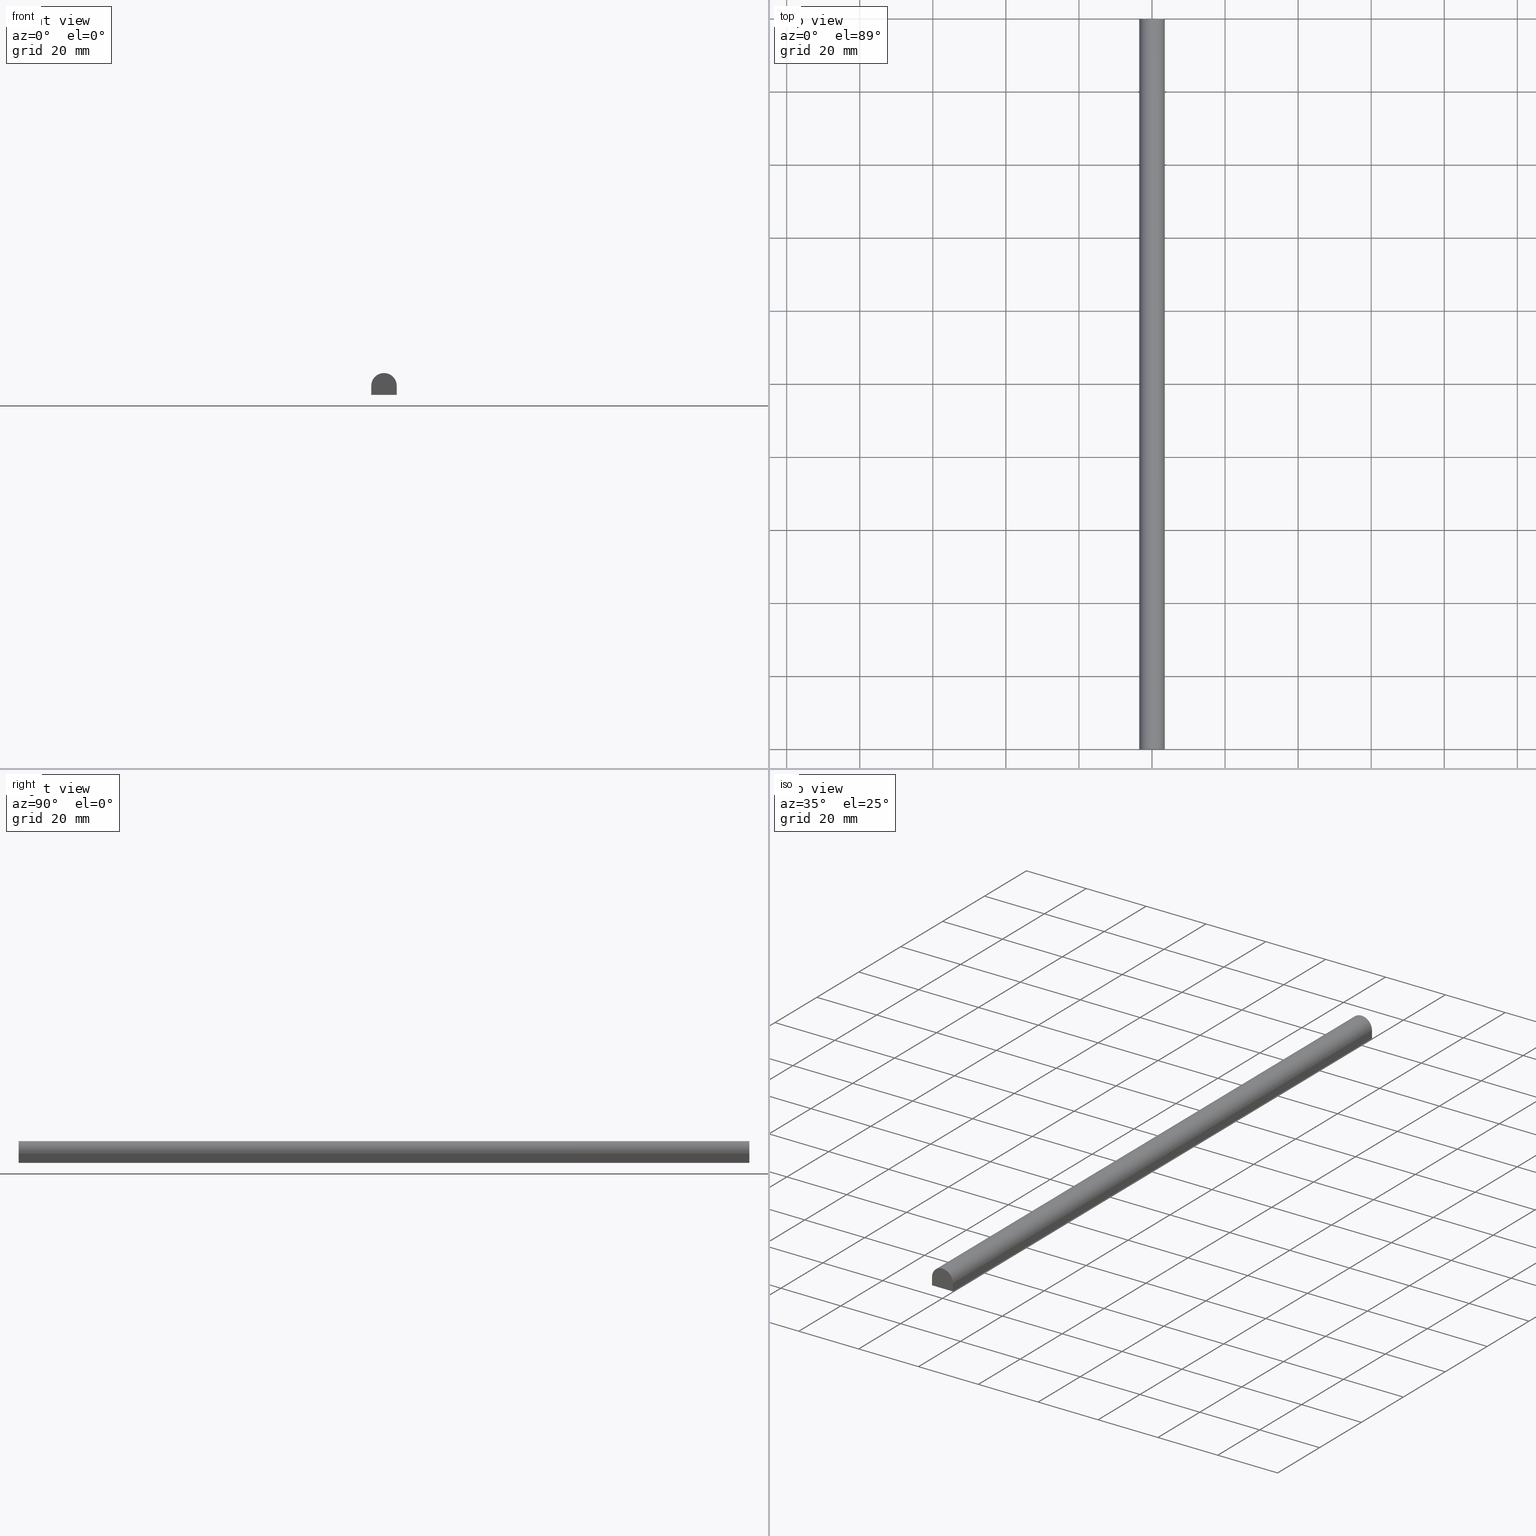
[diagram: canonical four-view strip — front | top / right | iso, engineering-drawing reading convention]
A machine part, canonical four-view strip (front | top / right | iso — engineering-drawing reading convention). The complete STEP part file that produces these views, byte-faithful:
ISO-10303-21;
HEADER;
FILE_DESCRIPTION (( 'STEP AP214' ),
    '1' );
FILE_NAME ('TM_341W_1.STEP',
    '2016-05-10T04:08:46',
    ( '' ),
    ( '' ),
    'SwSTEP 2.0',
    'SolidWorks 2015',
    '' );
FILE_SCHEMA (( 'AUTOMOTIVE_DESIGN' ));
ENDSEC;

DATA;
#1 = DIRECTION ( 'NONE',  ( -0.0000000000000000000, -0.0000000000000000000, 1.000000000000000000 ) ) ;
#2 = FACE_OUTER_BOUND ( 'NONE', #124, .T. ) ;
#3 = CARTESIAN_POINT ( 'NONE',  ( 0.0000000000000000000, 200.0000000000000000, 0.0000000000000000000 ) ) ;
#4 = CARTESIAN_POINT ( 'NONE',  ( -3.500000000000000000, 1000.000000000000000, -3.000000000000000000 ) ) ;
#5 = CARTESIAN_POINT ( 'NONE',  ( 3.500000000000000000, 1000.000000000000000, -3.000000000000000000 ) ) ;
#6 = CARTESIAN_POINT ( 'NONE',  ( 0.0000000000000000000, 200.0000000000000000, -3.000000000000000000 ) ) ;
#7 = SURFACE_STYLE_USAGE ( .BOTH. , #70 ) ;
#8 = PLANE ( 'NONE',  #75 ) ;
#9 = APPLICATION_CONTEXT ( 'automotive_design' ) ;
#10 = VERTEX_POINT ( 'NONE', #132 ) ;
#11 = STYLED_ITEM ( 'NONE', ( #151 ), #180 ) ;
#12 = DIRECTION ( 'NONE',  ( 1.000000000000000000, 0.0000000000000000000, 0.0000000000000000000 ) ) ;
#13 = PRODUCT_RELATED_PRODUCT_CATEGORY ( 'part', '', ( #53 ) ) ;
#14 = ORIENTED_EDGE ( 'NONE', *, *, #222, .F. ) ;
#15 = FACE_OUTER_BOUND ( 'NONE', #155, .T. ) ;
#16 = EDGE_CURVE ( 'NONE', #73, #200, #29, .T. ) ;
#17 = DIRECTION ( 'NONE',  ( -1.000000000000000000, 0.0000000000000000000, 0.0000000000000000000 ) ) ;
#18 = ORIENTED_EDGE ( 'NONE', *, *, #174, .T. ) ;
#19 = UNCERTAINTY_MEASURE_WITH_UNIT (LENGTH_MEASURE( 1.000000000000000100E-005 ), #230, 'distance_accuracy_value', 'NONE');
#20 = PRESENTATION_LAYER_ASSIGNMENT (  '', '', ( #11 ) ) ;
#21 = DIRECTION ( 'NONE',  ( 0.0000000000000000000, 0.0000000000000000000, -1.000000000000000000 ) ) ;
#22 = DIRECTION ( 'NONE',  ( 0.0000000000000000000, -1.000000000000000000, 0.0000000000000000000 ) ) ;
#23 = VECTOR ( 'NONE', #171, 1000.000000000000000 ) ;
#24 = ORIENTED_EDGE ( 'NONE', *, *, #120, .F. ) ;
#25 = VERTEX_POINT ( 'NONE', #240 ) ;
#26 = DIRECTION ( 'NONE',  ( 0.0000000000000000000, -1.000000000000000000, 0.0000000000000000000 ) ) ;
#27 = APPLICATION_CONTEXT ( 'automotive_design' ) ;
#28 = PRODUCT_DEFINITION_SHAPE ( 'NONE', 'NONE',  #241 ) ;
#29 = LINE ( 'NONE', #201, #85 ) ;
#30 = ORIENTED_EDGE ( 'NONE', *, *, #214, .F. ) ;
#31 = VECTOR ( 'NONE', #46, 1000.000000000000000 ) ;
#32 = AXIS2_PLACEMENT_3D ( 'NONE', #62, #161, #128 ) ;
#33 = MECHANICAL_DESIGN_GEOMETRIC_PRESENTATION_REPRESENTATION (  '', ( #11 ), #50 ) ;
#34 = DIRECTION ( 'NONE',  ( -0.0000000000000000000, -0.0000000000000000000, -1.000000000000000000 ) ) ;
#35 = SURFACE_STYLE_FILL_AREA ( #94 ) ;
#36 = SHAPE_DEFINITION_REPRESENTATION ( #207, #66 ) ;
#37 = VERTEX_POINT ( 'NONE', #40 ) ;
#38 = CARTESIAN_POINT ( 'NONE',  ( 3.500000000000000000, 1000.000000000000000, -3.000000000000000000 ) ) ;
#39 = ORIENTED_EDGE ( 'NONE', *, *, #16, .T. ) ;
#40 = CARTESIAN_POINT ( 'NONE',  ( -3.500000000000000000, 0.0000000000000000000, -3.000000000000000000 ) ) ;
#41 = EDGE_CURVE ( 'NONE', #206, #200, #101, .T. ) ;
#42 = SURFACE_SIDE_STYLE ('',( #35 ) ) ;
#43 = FACE_OUTER_BOUND ( 'NONE', #175, .T. ) ;
#44 = CARTESIAN_POINT ( 'NONE',  ( 0.0000000000000000000, 0.0000000000000000000, 0.0000000000000000000 ) ) ;
#45 = DIRECTION ( 'NONE',  ( 0.0000000000000000000, 0.0000000000000000000, 1.000000000000000000 ) ) ;
#46 = DIRECTION ( 'NONE',  ( 1.000000000000000000, -0.0000000000000000000, -0.0000000000000000000 ) ) ;
#47 =( REPRESENTATION_RELATIONSHIP ('NONE','NONE', #69, #66 ) REPRESENTATION_RELATIONSHIP_WITH_TRANSFORMATION ( #135 )SHAPE_REPRESENTATION_RELATIONSHIP( ) );
#48 = DIRECTION ( 'NONE',  ( 0.0000000000000000000, 0.0000000000000000000, 1.000000000000000000 ) ) ;
#49 = UNCERTAINTY_MEASURE_WITH_UNIT (LENGTH_MEASURE( 1.000000000000000100E-005 ), #188, 'distance_accuracy_value', 'NONE');
#50 =( GEOMETRIC_REPRESENTATION_CONTEXT ( 3 ) GLOBAL_UNCERTAINTY_ASSIGNED_CONTEXT ( ( #19 ) ) GLOBAL_UNIT_ASSIGNED_CONTEXT ( ( #230, #98, #83 ) ) REPRESENTATION_CONTEXT ( 'NONE', 'WORKASPACE' ) );
#51 = VECTOR ( 'NONE', #22, 1000.000000000000000 ) ;
#52 = VECTOR ( 'NONE', #146, 1000.000000000000000 ) ;
#53 = PRODUCT ( 'rubber foam', 'rubber foam', '', ( #194 ) ) ;
#54 = COLOUR_RGB ( '',0.7921568627450980000, 0.8196078431372548800, 0.9333333333333333500 ) ;
#55 = PLANE ( 'NONE',  #205 ) ;
#56 = AXIS2_PLACEMENT_3D ( 'NONE', #125, #122, #173 ) ;
#57 = CARTESIAN_POINT ( 'NONE',  ( -3.500000000000000000, 1000.000000000000000, -0.5000000000000000000 ) ) ;
#58 = LINE ( 'NONE', #166, #144 ) ;
#59 = CLOSED_SHELL ( 'NONE', ( #134, #216, #64, #72, #158, #136 ) ) ;
#60 = SURFACE_STYLE_FILL_AREA ( #100 ) ;
#61 =( NAMED_UNIT ( * ) SI_UNIT ( $, .STERADIAN. ) SOLID_ANGLE_UNIT ( ) );
#62 = CARTESIAN_POINT ( 'NONE',  ( 0.0000000000000000000, 1000.000000000000000, -0.5000000000000000000 ) ) ;
#63 = CARTESIAN_POINT ( 'NONE',  ( 3.500000000000000000, 200.0000000000000000, 0.0000000000000000000 ) ) ;
#64 = ADVANCED_FACE ( 'NONE', ( #15 ), #89, .T. ) ;
#65 = CARTESIAN_POINT ( 'NONE',  ( 0.0000000000000000000, 0.0000000000000000000, -3.000000000000000000 ) ) ;
#66 = SHAPE_REPRESENTATION ( 'rubber foam', ( #238 ), #225 ) ;
#67 = APPLICATION_CONTEXT ( 'automotive_design' ) ;
#68 = ORIENTED_EDGE ( 'NONE', *, *, #129, .T. ) ;
#69 = SHAPE_REPRESENTATION ( 'TM_341W_1', ( #162, #133 ), #152 ) ;
#70 = SURFACE_SIDE_STYLE ('',( #60 ) ) ;
#71 = EDGE_CURVE ( 'NONE', #25, #73, #186, .T. ) ;
#72 = ADVANCED_FACE ( 'NONE', ( #164 ), #8, .T. ) ;
#73 = VERTEX_POINT ( 'NONE', #204 ) ;
#74 = EDGE_LOOP ( 'NONE', ( #30, #210, #18, #111 ) ) ;
#75 = AXIS2_PLACEMENT_3D ( 'NONE', #57, #17, #45 ) ;
#76 = CARTESIAN_POINT ( 'NONE',  ( -3.500000000000000000, 200.0000000000000000, -0.5000000000000000000 ) ) ;
#77 = DIRECTION ( 'NONE',  ( 0.0000000000000000000, 0.0000000000000000000, 1.000000000000000000 ) ) ;
#78 = ORIENTED_EDGE ( 'NONE', *, *, #196, .T. ) ;
#79 = ORIENTED_EDGE ( 'NONE', *, *, #71, .T. ) ;
#80 = DIRECTION ( 'NONE',  ( -0.0000000000000000000, 1.000000000000000000, 0.0000000000000000000 ) ) ;
#81 = EDGE_CURVE ( 'NONE', #200, #184, #115, .T. ) ;
#82 = VECTOR ( 'NONE', #170, 1000.000000000000000 ) ;
#83 =( NAMED_UNIT ( * ) SI_UNIT ( $, .STERADIAN. ) SOLID_ANGLE_UNIT ( ) );
#84 =( NAMED_UNIT ( * ) PLANE_ANGLE_UNIT ( ) SI_UNIT ( $, .RADIAN. ) );
#85 = VECTOR ( 'NONE', #26, 1000.000000000000000 ) ;
#86 = APPLICATION_PROTOCOL_DEFINITION ( 'draft international standard', 'automotive_design', 1998, #27 ) ;
#87 =( NAMED_UNIT ( * ) PLANE_ANGLE_UNIT ( ) SI_UNIT ( $, .RADIAN. ) );
#88 = LINE ( 'NONE', #5, #82 ) ;
#89 = CYLINDRICAL_SURFACE ( 'NONE', #32, 3.500000000000000000 ) ;
#90 = ORIENTED_EDGE ( 'NONE', *, *, #16, .F. ) ;
#91 = UNCERTAINTY_MEASURE_WITH_UNIT (LENGTH_MEASURE( 1.000000000000000100E-005 ), #229, 'distance_accuracy_value', 'NONE');
#92 = EDGE_CURVE ( 'NONE', #117, #184, #217, .T. ) ;
#93 = CARTESIAN_POINT ( 'NONE',  ( 3.500000000000000000, 0.0000000000000000000, -3.000000000000000000 ) ) ;
#94 = FILL_AREA_STYLE ('',( #220 ) ) ;
#95 = CARTESIAN_POINT ( 'NONE',  ( -3.500000000000000000, 0.0000000000000000000, -0.5000000000000000000 ) ) ;
#96 = CARTESIAN_POINT ( 'NONE',  ( 3.500000000000000000, 0.0000000000000000000, -0.5000000000000000000 ) ) ;
#97 =( NAMED_UNIT ( * ) PLANE_ANGLE_UNIT ( ) SI_UNIT ( $, .RADIAN. ) );
#98 =( NAMED_UNIT ( * ) PLANE_ANGLE_UNIT ( ) SI_UNIT ( $, .RADIAN. ) );
#99 = APPLICATION_CONTEXT ( 'automotive_design' ) ;
#100 = FILL_AREA_STYLE ('',( #113 ) ) ;
#101 = LINE ( 'NONE', #223, #127 ) ;
#102 = ORIENTED_EDGE ( 'NONE', *, *, #150, .F. ) ;
#103 = COLOUR_RGB ( '',0.7921568627450980000, 0.8196078431372548800, 0.9333333333333333500 ) ;
#104 = DIRECTION ( 'NONE',  ( 1.000000000000000000, 0.0000000000000000000, 0.0000000000000000000 ) ) ;
#105 = CARTESIAN_POINT ( 'NONE',  ( -3.500000000000000000, 1000.000000000000000, -0.5000000000000000000 ) ) ;
#106 = ORIENTED_EDGE ( 'NONE', *, *, #214, .T. ) ;
#107 = DIRECTION ( 'NONE',  ( -1.000000000000000000, 0.0000000000000000000, 0.0000000000000000000 ) ) ;
#108 = PRODUCT_DEFINITION_CONTEXT ( 'detailed design', #67, 'design' ) ;
#109 = SHAPE_DEFINITION_REPRESENTATION ( #198, #69 ) ;
#110 = ORIENTED_EDGE ( 'NONE', *, *, #222, .T. ) ;
#111 = ORIENTED_EDGE ( 'NONE', *, *, #150, .T. ) ;
#112 = APPLICATION_PROTOCOL_DEFINITION ( 'draft international standard', 'automotive_design', 1998, #9 ) ;
#113 = FILL_AREA_STYLE_COLOUR ( '', #54 ) ;
#114 = VECTOR ( 'NONE', #192, 1000.000000000000000 ) ;
#115 = CIRCLE ( 'NONE', #157, 3.500000000000000000 ) ;
#116 = ORIENTED_EDGE ( 'NONE', *, *, #41, .T. ) ;
#117 = VERTEX_POINT ( 'NONE', #76 ) ;
#118 = SHAPE_REPRESENTATION_RELATIONSHIP ( 'NONE' , 'NONE' ,  #66, #180 ) ;
#119 = AXIS2_PLACEMENT_3D ( 'NONE', #44, #80, #234 ) ;
#120 = EDGE_CURVE ( 'NONE', #25, #206, #88, .T. ) ;
#121 = AXIS2_PLACEMENT_3D ( 'NONE', #142, #165, #224 ) ;
#122 = DIRECTION ( 'NONE',  ( -0.0000000000000000000, -1.000000000000000000, -0.0000000000000000000 ) ) ;
#123 = DIRECTION ( 'NONE',  ( 1.000000000000000000, 0.0000000000000000000, 0.0000000000000000000 ) ) ;
#124 = EDGE_LOOP ( 'NONE', ( #148, #169, #131, #126 ) ) ;
#125 = CARTESIAN_POINT ( 'NONE',  ( 0.0000000000000000000, 200.0000000000000000, -0.5000000000000000000 ) ) ;
#126 = ORIENTED_EDGE ( 'NONE', *, *, #71, .F. ) ;
#127 = VECTOR ( 'NONE', #163, 1000.000000000000000 ) ;
#128 = DIRECTION ( 'NONE',  ( 0.0000000000000000000, 0.0000000000000000000, -1.000000000000000000 ) ) ;
#129 = EDGE_CURVE ( 'NONE', #73, #117, #172, .T. ) ;
#130 = EDGE_LOOP ( 'NONE', ( #14, #102, #78, #167 ) ) ;
#131 = ORIENTED_EDGE ( 'NONE', *, *, #129, .F. ) ;
#132 = CARTESIAN_POINT ( 'NONE',  ( -3.500000000000000000, 200.0000000000000000, -3.000000000000000000 ) ) ;
#133 = AXIS2_PLACEMENT_3D ( 'NONE', #139, #77, #236 ) ;
#134 = ADVANCED_FACE ( 'NONE', ( #181 ), #55, .T. ) ;
#135 = ITEM_DEFINED_TRANSFORMATION ( 'NONE', 'NONE', #133,  #238 ) ;
#136 = ADVANCED_FACE ( 'NONE', ( #43 ), #208, .F. ) ;
#137 = EDGE_LOOP ( 'NONE', ( #185, #24, #79, #39 ) ) ;
#138 = DIRECTION ( 'NONE',  ( -0.0000000000000000000, 1.000000000000000000, 0.0000000000000000000 ) ) ;
#139 = CARTESIAN_POINT ( 'NONE',  ( 0.0000000000000000000, 0.0000000000000000000, 0.0000000000000000000 ) ) ;
#140 = CARTESIAN_POINT ( 'NONE',  ( 0.0000000000000000000, 0.0000000000000000000, 0.0000000000000000000 ) ) ;
#141 = DIRECTION ( 'NONE',  ( 0.0000000000000000000, 0.0000000000000000000, -1.000000000000000000 ) ) ;
#142 = CARTESIAN_POINT ( 'NONE',  ( 0.0000000000000000000, 0.0000000000000000000, 0.0000000000000000000 ) ) ;
#143 = CONTEXT_DEPENDENT_SHAPE_REPRESENTATION ( #47, #28 ) ;
#144 = VECTOR ( 'NONE', #34, 1000.000000000000000 ) ;
#145 = PRODUCT_DEFINITION_CONTEXT ( 'detailed design', #99, 'design' ) ;
#146 = DIRECTION ( 'NONE',  ( -0.0000000000000000000, -0.0000000000000000000, -1.000000000000000000 ) ) ;
#147 = AXIS2_PLACEMENT_3D ( 'NONE', #3, #138, #104 ) ;
#148 = ORIENTED_EDGE ( 'NONE', *, *, #196, .F. ) ;
#149 = LINE ( 'NONE', #65, #31 ) ;
#150 = EDGE_CURVE ( 'NONE', #10, #37, #190, .T. ) ;
#151 = PRESENTATION_STYLE_ASSIGNMENT (( #7 ) ) ;
#152 =( GEOMETRIC_REPRESENTATION_CONTEXT ( 3 ) GLOBAL_UNCERTAINTY_ASSIGNED_CONTEXT ( ( #193 ) ) GLOBAL_UNIT_ASSIGNED_CONTEXT ( ( #213, #87, #195 ) ) REPRESENTATION_CONTEXT ( 'NONE', 'WORKASPACE' ) );
#153 = DIRECTION ( 'NONE',  ( 0.0000000000000000000, 0.0000000000000000000, 1.000000000000000000 ) ) ;
#154 = CARTESIAN_POINT ( 'NONE',  ( 0.0000000000000000000, 0.0000000000000000000, -0.5000000000000000000 ) ) ;
#155 = EDGE_LOOP ( 'NONE', ( #177, #90, #68, #233 ) ) ;
#156 = DIRECTION ( 'NONE',  ( 1.000000000000000000, 0.0000000000000000000, 0.0000000000000000000 ) ) ;
#157 = AXIS2_PLACEMENT_3D ( 'NONE', #154, #189, #227 ) ;
#158 = ADVANCED_FACE ( 'NONE', ( #2 ), #231, .T. ) ;
#159 = ORIENTED_EDGE ( 'NONE', *, *, #81, .T. ) ;
#160 = STYLED_ITEM ( 'NONE', ( #183 ), #226 ) ;
#161 = DIRECTION ( 'NONE',  ( 0.0000000000000000000, -1.000000000000000000, 0.0000000000000000000 ) ) ;
#162 = AXIS2_PLACEMENT_3D ( 'NONE', #140, #48, #156 ) ;
#163 = DIRECTION ( 'NONE',  ( -0.0000000000000000000, -0.0000000000000000000, 1.000000000000000000 ) ) ;
#164 = FACE_OUTER_BOUND ( 'NONE', #74, .T. ) ;
#165 = DIRECTION ( 'NONE',  ( 0.0000000000000000000, 0.0000000000000000000, 1.000000000000000000 ) ) ;
#166 = CARTESIAN_POINT ( 'NONE',  ( -3.500000000000000000, 200.0000000000000000, 0.0000000000000000000 ) ) ;
#167 = ORIENTED_EDGE ( 'NONE', *, *, #120, .T. ) ;
#168 = PLANE ( 'NONE',  #179 ) ;
#169 = ORIENTED_EDGE ( 'NONE', *, *, #174, .F. ) ;
#170 = DIRECTION ( 'NONE',  ( 0.0000000000000000000, -1.000000000000000000, 0.0000000000000000000 ) ) ;
#171 = DIRECTION ( 'NONE',  ( 0.0000000000000000000, -1.000000000000000000, 0.0000000000000000000 ) ) ;
#172 = CIRCLE ( 'NONE', #56, 3.500000000000000000 ) ;
#173 = DIRECTION ( 'NONE',  ( 0.0000000000000000000, 0.0000000000000000000, 1.000000000000000000 ) ) ;
#174 = EDGE_CURVE ( 'NONE', #117, #10, #58, .T. ) ;
#175 = EDGE_LOOP ( 'NONE', ( #110, #116, #159, #106 ) ) ;
#176 = CARTESIAN_POINT ( 'NONE',  ( -3.500000000000000000, 1000.000000000000000, -3.000000000000000000 ) ) ;
#177 = ORIENTED_EDGE ( 'NONE', *, *, #81, .F. ) ;
#178 = APPLICATION_PROTOCOL_DEFINITION ( 'draft international standard', 'automotive_design', 1998, #67 ) ;
#179 = AXIS2_PLACEMENT_3D ( 'NONE', #38, #123, #141 ) ;
#180 = ADVANCED_BREP_SHAPE_REPRESENTATION ( '', ( #226, #238 ), #225 ) ;
#181 = FACE_OUTER_BOUND ( 'NONE', #130, .T. ) ;
#182 = PRODUCT_DEFINITION ( 'UNKNOWN', '', #239, #108 ) ;
#183 = PRESENTATION_STYLE_ASSIGNMENT (( #187 ) ) ;
#184 = VERTEX_POINT ( 'NONE', #95 ) ;
#185 = ORIENTED_EDGE ( 'NONE', *, *, #41, .F. ) ;
#186 = LINE ( 'NONE', #63, #237 ) ;
#187 = SURFACE_STYLE_USAGE ( .BOTH. , #42 ) ;
#188 =( LENGTH_UNIT ( ) NAMED_UNIT ( * ) SI_UNIT ( .MILLI., .METRE. ) );
#189 = DIRECTION ( 'NONE',  ( -0.0000000000000000000, -1.000000000000000000, -0.0000000000000000000 ) ) ;
#190 = LINE ( 'NONE', #176, #51 ) ;
#191 = PRESENTATION_LAYER_ASSIGNMENT (  '', '', ( #160 ) ) ;
#192 = DIRECTION ( 'NONE',  ( 1.000000000000000000, -0.0000000000000000000, -0.0000000000000000000 ) ) ;
#193 = UNCERTAINTY_MEASURE_WITH_UNIT (LENGTH_MEASURE( 1.000000000000000100E-005 ), #213, 'distance_accuracy_value', 'NONE');
#194 = PRODUCT_CONTEXT ( 'NONE', #27, 'mechanical' ) ;
#195 =( NAMED_UNIT ( * ) SI_UNIT ( $, .STERADIAN. ) SOLID_ANGLE_UNIT ( ) );
#196 = EDGE_CURVE ( 'NONE', #10, #25, #221, .T. ) ;
#197 = LINE ( 'NONE', #219, #52 ) ;
#198 = PRODUCT_DEFINITION_SHAPE ( 'NONE', 'NONE',  #202 ) ;
#199 = MECHANICAL_DESIGN_GEOMETRIC_PRESENTATION_REPRESENTATION (  '', ( #160 ), #212 ) ;
#200 = VERTEX_POINT ( 'NONE', #96 ) ;
#201 = CARTESIAN_POINT ( 'NONE',  ( 3.500000000000000000, 1000.000000000000000, -0.5000000000000000000 ) ) ;
#202 = PRODUCT_DEFINITION ( 'UNKNOWN', '', #215, #145 ) ;
#203 = FACE_OUTER_BOUND ( 'NONE', #137, .T. ) ;
#204 = CARTESIAN_POINT ( 'NONE',  ( 3.500000000000000000, 200.0000000000000000, -0.5000000000000000000 ) ) ;
#205 = AXIS2_PLACEMENT_3D ( 'NONE', #4, #21, #107 ) ;
#206 = VERTEX_POINT ( 'NONE', #93 ) ;
#207 = PRODUCT_DEFINITION_SHAPE ( 'NONE', 'NONE',  #182 ) ;
#208 = PLANE ( 'NONE',  #119 ) ;
#209 = CARTESIAN_POINT ( 'NONE',  ( 0.0000000000000000000, 0.0000000000000000000, 0.0000000000000000000 ) ) ;
#210 = ORIENTED_EDGE ( 'NONE', *, *, #92, .F. ) ;
#211 = APPLICATION_PROTOCOL_DEFINITION ( 'draft international standard', 'automotive_design', 1998, #99 ) ;
#212 =( GEOMETRIC_REPRESENTATION_CONTEXT ( 3 ) GLOBAL_UNCERTAINTY_ASSIGNED_CONTEXT ( ( #49 ) ) GLOBAL_UNIT_ASSIGNED_CONTEXT ( ( #188, #97, #61 ) ) REPRESENTATION_CONTEXT ( 'NONE', 'WORKASPACE' ) );
#213 =( LENGTH_UNIT ( ) NAMED_UNIT ( * ) SI_UNIT ( .MILLI., .METRE. ) );
#214 = EDGE_CURVE ( 'NONE', #184, #37, #197, .T. ) ;
#215 = PRODUCT_DEFINITION_FORMATION_WITH_SPECIFIED_SOURCE ( 'ANY', '', #218, .NOT_KNOWN. ) ;
#216 = ADVANCED_FACE ( 'NONE', ( #203 ), #168, .T. ) ;
#217 = LINE ( 'NONE', #105, #23 ) ;
#218 = PRODUCT ( 'TM_341W_1', 'TM_341W_1', '', ( #235 ) ) ;
#219 = CARTESIAN_POINT ( 'NONE',  ( -3.500000000000000000, 0.0000000000000000000, 0.0000000000000000000 ) ) ;
#220 = FILL_AREA_STYLE_COLOUR ( '', #103 ) ;
#221 = LINE ( 'NONE', #6, #114 ) ;
#222 = EDGE_CURVE ( 'NONE', #37, #206, #149, .T. ) ;
#223 = CARTESIAN_POINT ( 'NONE',  ( 3.500000000000000000, 0.0000000000000000000, 0.0000000000000000000 ) ) ;
#224 = DIRECTION ( 'NONE',  ( 1.000000000000000000, 0.0000000000000000000, 0.0000000000000000000 ) ) ;
#225 =( GEOMETRIC_REPRESENTATION_CONTEXT ( 3 ) GLOBAL_UNCERTAINTY_ASSIGNED_CONTEXT ( ( #91 ) ) GLOBAL_UNIT_ASSIGNED_CONTEXT ( ( #229, #84, #232 ) ) REPRESENTATION_CONTEXT ( 'NONE', 'WORKASPACE' ) );
#226 = MANIFOLD_SOLID_BREP ( '���߰�1', #59 ) ;
#227 = DIRECTION ( 'NONE',  ( 0.0000000000000000000, 0.0000000000000000000, 1.000000000000000000 ) ) ;
#228 = PRODUCT_RELATED_PRODUCT_CATEGORY ( 'part', '', ( #218 ) ) ;
#229 =( LENGTH_UNIT ( ) NAMED_UNIT ( * ) SI_UNIT ( .MILLI., .METRE. ) );
#230 =( LENGTH_UNIT ( ) NAMED_UNIT ( * ) SI_UNIT ( .MILLI., .METRE. ) );
#231 = PLANE ( 'NONE',  #147 ) ;
#232 =( NAMED_UNIT ( * ) SI_UNIT ( $, .STERADIAN. ) SOLID_ANGLE_UNIT ( ) );
#233 = ORIENTED_EDGE ( 'NONE', *, *, #92, .T. ) ;
#234 = DIRECTION ( 'NONE',  ( 1.000000000000000000, 0.0000000000000000000, 0.0000000000000000000 ) ) ;
#235 = PRODUCT_CONTEXT ( 'NONE', #9, 'mechanical' ) ;
#236 = DIRECTION ( 'NONE',  ( 1.000000000000000000, 0.0000000000000000000, 0.0000000000000000000 ) ) ;
#237 = VECTOR ( 'NONE', #1, 1000.000000000000000 ) ;
#238 = AXIS2_PLACEMENT_3D ( 'NONE', #209, #153, #12 ) ;
#239 = PRODUCT_DEFINITION_FORMATION_WITH_SPECIFIED_SOURCE ( 'ANY', '', #53, .NOT_KNOWN. ) ;
#240 = CARTESIAN_POINT ( 'NONE',  ( 3.500000000000000000, 200.0000000000000000, -3.000000000000000000 ) ) ;
#241 = NEXT_ASSEMBLY_USAGE_OCCURRENCE ( 'NAUO1', ' ', ' ', #202, #182, $ ) ;
ENDSEC;
END-ISO-10303-21;
